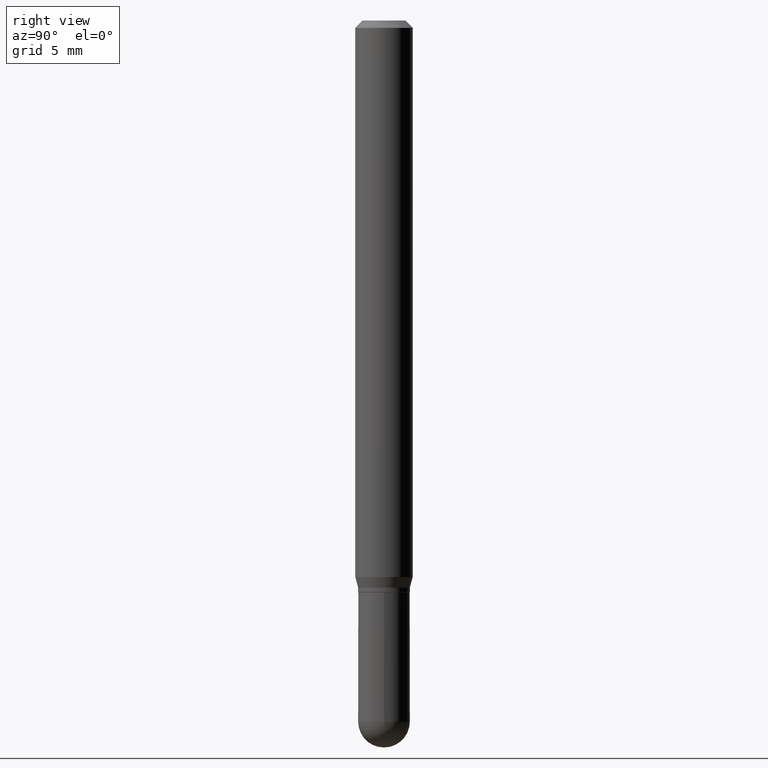
[diagram: clean part render]
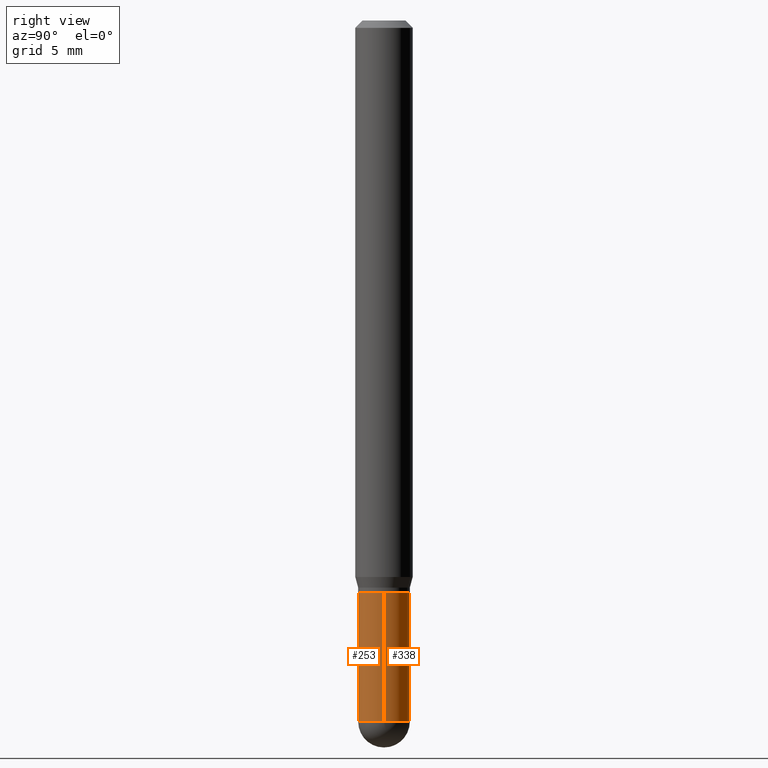
[diagram: same view with one multi-face feature highlighted, each face labeled with its STEP entity id]
A machine part, right view. The highlighted faces form ONE feature: a constant-radius fillet chain: 2 tangent blend faces with common blend radius 1.35 mm. The faces share edges in the B-rep.
Their STEP definitions:
[1] entity #253 (Cylinder):
#16 = ORIENTED_EDGE ( 'NONE', *, *, #285, .T. ) ;
#18 = DIRECTION ( 'NONE',  ( -2.445468806185136597E-29, 3.491481338843145583E-15, 1.000000000000000000 ) ) ;
#32 = VERTEX_POINT ( 'NONE', #510 ) ;
#40 = DIRECTION ( 'NONE',  ( -2.445468806185136597E-29, 3.491481338843145583E-15, 1.000000000000000000 ) ) ;
#51 = DIRECTION ( 'NONE',  ( -2.445468806185136597E-29, 3.491481338843145583E-15, 1.000000000000000000 ) ) ;
#80 = LINE ( 'NONE', #453, #489 ) ;
#85 = EDGE_LOOP ( 'NONE', ( #120, #217, #16, #105, #222 ) ) ;
#87 = CARTESIAN_POINT ( 'NONE',  ( 3.528689213884843040E-29, -5.038032997883716336E-15, -1.442949999999999955 ) ) ;
#94 = CARTESIAN_POINT ( 'NONE',  ( 2.878805878641142370E-29, -4.110171832086151297E-15, -1.177200000000000024 ) ) ;
#100 = CIRCLE ( 'NONE', #250, 0.05315000000000000280 ) ;
#104 = AXIS2_PLACEMENT_3D ( 'NONE', #444, #367, #484 ) ;
#105 = ORIENTED_EDGE ( 'NONE', *, *, #243, .T. ) ;
#118 = VERTEX_POINT ( 'NONE', #303 ) ;
#120 = ORIENTED_EDGE ( 'NONE', *, *, #291, .F. ) ;
#121 = DIRECTION ( 'NONE',  ( -2.445468806185136877E-29, 3.491481338843145188E-15, 1.000000000000000000 ) ) ;
#132 = EDGE_CURVE ( 'NONE', #469, #269, #361, .T. ) ;
#145 = VECTOR ( 'NONE', #402, 39.37007874015748143 ) ;
#163 = CARTESIAN_POINT ( 'NONE',  ( -0.05315000000000000280, -4.196448950928440351E-15, -1.177200000000000024 ) ) ;
#217 = ORIENTED_EDGE ( 'NONE', *, *, #132, .T. ) ;
#222 = ORIENTED_EDGE ( 'NONE', *, *, #356, .F. ) ;
#232 = VERTEX_POINT ( 'NONE', #163 ) ;
#235 = CARTESIAN_POINT ( 'NONE',  ( -3.711444663189897185E-16, -0.05315000000000504043, -1.442949999999999733 ) ) ;
#239 = AXIS2_PLACEMENT_3D ( 'NONE', #87, #18, #287 ) ;
#243 = EDGE_CURVE ( 'NONE', #32, #118, #80, .T. ) ;
#250 = AXIS2_PLACEMENT_3D ( 'NONE', #94, #51, #370 ) ;
#253 = ADVANCED_FACE ( 'NONE', ( #319 ), #321, .T. ) ;
#269 = VERTEX_POINT ( 'NONE', #235 ) ;
#285 = EDGE_CURVE ( 'NONE', #269, #32, #376, .T. ) ;
#287 = DIRECTION ( 'NONE',  ( 1.000000000000000000, -6.982962677686260400E-15, 0.000000000000000000 ) ) ;
#291 = EDGE_CURVE ( 'NONE', #469, #232, #482, .T. ) ;
#303 = CARTESIAN_POINT ( 'NONE',  ( 0.05315000000000000280, -4.481316298405176366E-15, -1.177200000000000024 ) ) ;
#319 = FACE_OUTER_BOUND ( 'NONE', #85, .T. ) ;
#321 = CYLINDRICAL_SURFACE ( 'NONE', #104, 0.05315000000000000280 ) ;
#333 = CARTESIAN_POINT ( 'NONE',  ( -0.05315000000000000280, -4.196448950928440351E-15, -1.442949999999999955 ) ) ;
#348 = DIRECTION ( 'NONE',  ( 1.000000000000000000, -6.982962677686260400E-15, 0.000000000000000000 ) ) ;
#356 = EDGE_CURVE ( 'NONE', #232, #118, #100, .T. ) ;
#361 = CIRCLE ( 'NONE', #417, 0.05315000000000000280 ) ;
#367 = DIRECTION ( 'NONE',  ( -2.445468806185136597E-29, 3.491481338843145583E-15, 1.000000000000000000 ) ) ;
#370 = DIRECTION ( 'NONE',  ( 1.000000000000000000, -6.982962677686269077E-15, 0.000000000000000000 ) ) ;
#376 = CIRCLE ( 'NONE', #239, 0.05315000000000000280 ) ;
#402 = DIRECTION ( 'NONE',  ( -2.445468806185136877E-29, 3.491481338843145188E-15, 1.000000000000000000 ) ) ;
#417 = AXIS2_PLACEMENT_3D ( 'NONE', #424, #40, #348 ) ;
#424 = CARTESIAN_POINT ( 'NONE',  ( 3.528689213884843040E-29, -5.038032997883716336E-15, -1.442949999999999955 ) ) ;
#441 = CARTESIAN_POINT ( 'NONE',  ( -0.05315000000000000280, 3.776534640564932687E-16, -2.614414000470482529E-30 ) ) ;
#444 = CARTESIAN_POINT ( 'NONE',  ( 0.000000000000000000, 0.000000000000000000, 0.000000000000000000 ) ) ;
#453 = CARTESIAN_POINT ( 'NONE',  ( 0.05315000000000000280, -3.711444663190251187E-16, 2.591687956335539675E-30 ) ) ;
#469 = VERTEX_POINT ( 'NONE', #333 ) ;
#482 = LINE ( 'NONE', #441, #145 ) ;
#484 = DIRECTION ( 'NONE',  ( 1.000000000000000000, -6.982962677686267499E-15, 4.876176775795935232E-29 ) ) ;
#489 = VECTOR ( 'NONE', #121, 39.37007874015748143 ) ;
#510 = CARTESIAN_POINT ( 'NONE',  ( 0.05315000000000000280, -4.945246881303958097E-15, -1.442949999999999955 ) ) ;
[2] entity #338 (Cylinder):
#6 = ORIENTED_EDGE ( 'NONE', *, *, #375, .T. ) ;
#8 = AXIS2_PLACEMENT_3D ( 'NONE', #67, #184, #473 ) ;
#26 = AXIS2_PLACEMENT_3D ( 'NONE', #374, #412, #138 ) ;
#32 = VERTEX_POINT ( 'NONE', #510 ) ;
#52 = CYLINDRICAL_SURFACE ( 'NONE', #495, 0.05315000000000000280 ) ;
#67 = CARTESIAN_POINT ( 'NONE',  ( 3.528689213884843040E-29, -5.038032997883716336E-15, -1.442949999999999955 ) ) ;
#76 = EDGE_CURVE ( 'NONE', #118, #232, #403, .T. ) ;
#80 = LINE ( 'NONE', #453, #489 ) ;
#83 = CIRCLE ( 'NONE', #8, 0.05315000000000000280 ) ;
#118 = VERTEX_POINT ( 'NONE', #303 ) ;
#121 = DIRECTION ( 'NONE',  ( -2.445468806185136877E-29, 3.491481338843145188E-15, 1.000000000000000000 ) ) ;
#126 = ORIENTED_EDGE ( 'NONE', *, *, #291, .T. ) ;
#138 = DIRECTION ( 'NONE',  ( 1.000000000000000000, -6.982962677686260400E-15, 0.000000000000000000 ) ) ;
#145 = VECTOR ( 'NONE', #402, 39.37007874015748143 ) ;
#149 = ORIENTED_EDGE ( 'NONE', *, *, #76, .F. ) ;
#153 = ORIENTED_EDGE ( 'NONE', *, *, #243, .F. ) ;
#163 = CARTESIAN_POINT ( 'NONE',  ( -0.05315000000000000280, -4.196448950928440351E-15, -1.177200000000000024 ) ) ;
#170 = DIRECTION ( 'NONE',  ( 1.000000000000000000, -6.982962677686267499E-15, 4.876176775795935232E-29 ) ) ;
#177 = CARTESIAN_POINT ( 'NONE',  ( 3.776534640565284223E-16, 0.05314999999999495128, -1.442950000000000177 ) ) ;
#184 = DIRECTION ( 'NONE',  ( -2.445468806185136597E-29, 3.491481338843145583E-15, 1.000000000000000000 ) ) ;
#212 = CARTESIAN_POINT ( 'NONE',  ( 0.000000000000000000, 0.000000000000000000, 0.000000000000000000 ) ) ;
#232 = VERTEX_POINT ( 'NONE', #163 ) ;
#243 = EDGE_CURVE ( 'NONE', #32, #118, #80, .T. ) ;
#291 = EDGE_CURVE ( 'NONE', #469, #232, #482, .T. ) ;
#303 = CARTESIAN_POINT ( 'NONE',  ( 0.05315000000000000280, -4.481316298405176366E-15, -1.177200000000000024 ) ) ;
#315 = DIRECTION ( 'NONE',  ( -2.445468806185136597E-29, 3.491481338843145583E-15, 1.000000000000000000 ) ) ;
#327 = FACE_OUTER_BOUND ( 'NONE', #354, .T. ) ;
#333 = CARTESIAN_POINT ( 'NONE',  ( -0.05315000000000000280, -4.196448950928440351E-15, -1.442949999999999955 ) ) ;
#338 = ADVANCED_FACE ( 'NONE', ( #327 ), #52, .T. ) ;
#354 = EDGE_LOOP ( 'NONE', ( #507, #126, #149, #153, #6 ) ) ;
#355 = DIRECTION ( 'NONE',  ( 1.000000000000000000, -6.982962677686269077E-15, 0.000000000000000000 ) ) ;
#363 = VERTEX_POINT ( 'NONE', #177 ) ;
#372 = DIRECTION ( 'NONE',  ( -2.445468806185136597E-29, 3.491481338843145583E-15, 1.000000000000000000 ) ) ;
#374 = CARTESIAN_POINT ( 'NONE',  ( 3.528689213884843040E-29, -5.038032997883716336E-15, -1.442949999999999955 ) ) ;
#375 = EDGE_CURVE ( 'NONE', #32, #363, #478, .T. ) ;
#402 = DIRECTION ( 'NONE',  ( -2.445468806185136877E-29, 3.491481338843145188E-15, 1.000000000000000000 ) ) ;
#403 = CIRCLE ( 'NONE', #433, 0.05315000000000000280 ) ;
#412 = DIRECTION ( 'NONE',  ( -2.445468806185136597E-29, 3.491481338843145583E-15, 1.000000000000000000 ) ) ;
#433 = AXIS2_PLACEMENT_3D ( 'NONE', #434, #315, #355 ) ;
#434 = CARTESIAN_POINT ( 'NONE',  ( 2.878805878641142370E-29, -4.110171832086151297E-15, -1.177200000000000024 ) ) ;
#441 = CARTESIAN_POINT ( 'NONE',  ( -0.05315000000000000280, 3.776534640564932687E-16, -2.614414000470482529E-30 ) ) ;
#453 = CARTESIAN_POINT ( 'NONE',  ( 0.05315000000000000280, -3.711444663190251187E-16, 2.591687956335539675E-30 ) ) ;
#469 = VERTEX_POINT ( 'NONE', #333 ) ;
#473 = DIRECTION ( 'NONE',  ( 1.000000000000000000, -6.982962677686260400E-15, 0.000000000000000000 ) ) ;
#478 = CIRCLE ( 'NONE', #26, 0.05315000000000000280 ) ;
#482 = LINE ( 'NONE', #441, #145 ) ;
#489 = VECTOR ( 'NONE', #121, 39.37007874015748143 ) ;
#495 = AXIS2_PLACEMENT_3D ( 'NONE', #212, #372, #170 ) ;
#505 = EDGE_CURVE ( 'NONE', #363, #469, #83, .T. ) ;
#507 = ORIENTED_EDGE ( 'NONE', *, *, #505, .T. ) ;
#510 = CARTESIAN_POINT ( 'NONE',  ( 0.05315000000000000280, -4.945246881303958097E-15, -1.442949999999999955 ) ) ;